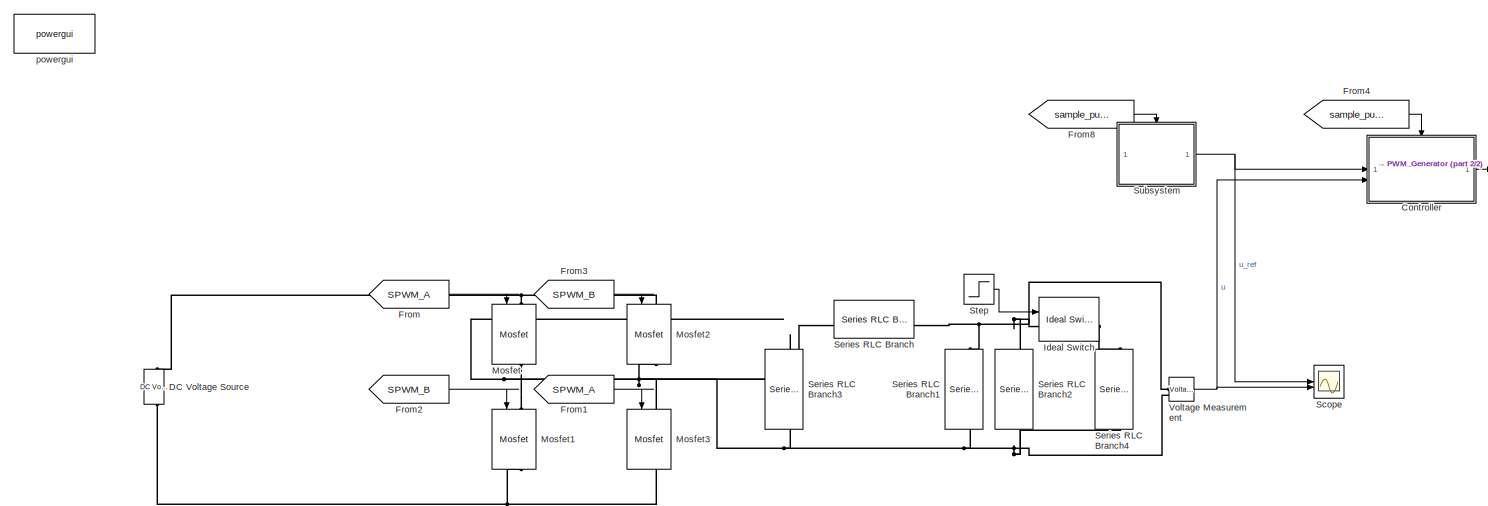
[diagram: root canvas - part 1/2, most of the canvas]
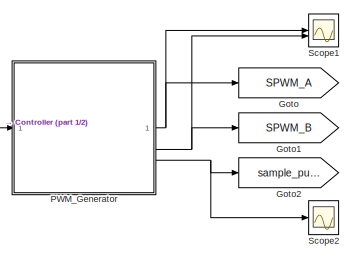
[diagram: root canvas - part 2/2, middle right region]
MODEL slx_9cd9f6e62352
KIND model
CONFIG AbsTol = auto
CONFIG EnableMultiTasking = off
CONFIG FixedStep = 1e-6
CONFIG MaxStep = 1e-8
CONFIG MinStep = auto
CONFIG RelTol = 1e-7
CONFIG SampleTimeConstraint = Unconstrained
CONFIG SolverName = VariableStepAuto
CONFIG StartTime = 0.0
CONFIG StopTime = 0.1
WORKSPACE source: mxarray member
WORKSPACE Kp = 0.2
WORKSPACE Kr = 10
WORKSPACE Ts = 2.5e-05
WORKSPACE wc = 6.28318530718
WORKSPACE wr = 314.159265359
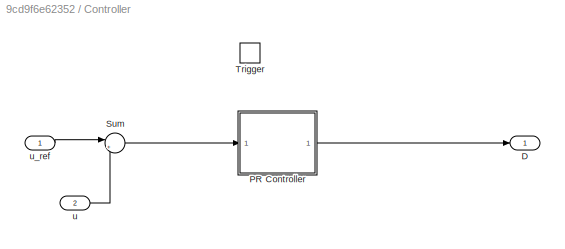
BLOCK [SubSystem] Controller
BLOCK [Outport] Controller/D
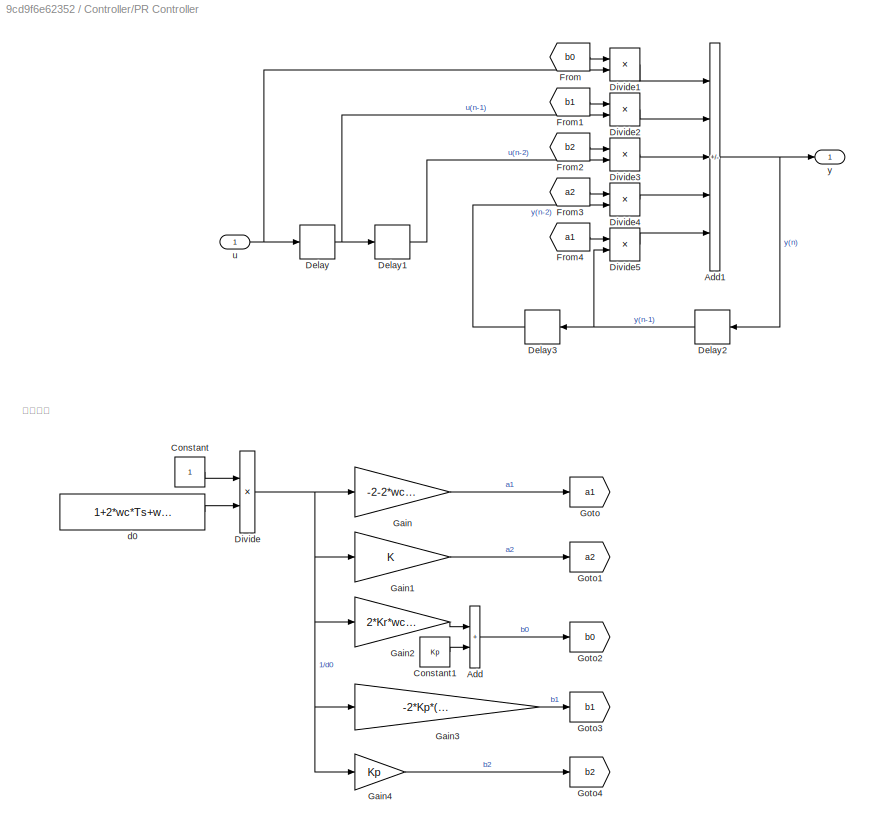
BLOCK [SubSystem] Controller/PR Controller
BLOCK [Sum] Controller/PR Controller/Add
  IconShape = rectangular
BLOCK [Sum] Controller/PR Controller/Add1
  IconShape = rectangular
  Inputs = +++--
BLOCK [Constant] Controller/PR Controller/Constant
BLOCK [Constant] Controller/PR Controller/Constant1
  Value = Kp
BLOCK [Delay] Controller/PR Controller/Delay
  DelayLength = 1
  InitialCondition = 0
  InputPortMap = u0
BLOCK [Delay] Controller/PR Controller/Delay1
  DelayLength = 1
  InitialCondition = 0
  InputPortMap = u0
BLOCK [Delay] Controller/PR Controller/Delay2
  DelayLength = 1
  InitialCondition = 0
  InputPortMap = u0
  NameLocation = top
BLOCK [Delay] Controller/PR Controller/Delay3
  DelayLength = 1
  InitialCondition = 0
  InputPortMap = u0
  NameLocation = top
BLOCK [Product] Controller/PR Controller/Divide
  Inputs = */
BLOCK [Product] Controller/PR Controller/Divide1
  Inputs = **
BLOCK [Product] Controller/PR Controller/Divide2
  Inputs = **
BLOCK [Product] Controller/PR Controller/Divide3
  Inputs = **
BLOCK [Product] Controller/PR Controller/Divide4
  Inputs = **
BLOCK [Product] Controller/PR Controller/Divide5
  Inputs = **
BLOCK [From] Controller/PR Controller/From
  GotoTag = b0
BLOCK [From] Controller/PR Controller/From1
  GotoTag = b1
BLOCK [From] Controller/PR Controller/From2
  GotoTag = b2
BLOCK [From] Controller/PR Controller/From3
  GotoTag = a2
BLOCK [From] Controller/PR Controller/From4
  GotoTag = a1
BLOCK [Gain] Controller/PR Controller/Gain
  Gain = -2-2*wc*Ts
BLOCK [Gain] Controller/PR Controller/Gain1
BLOCK [Gain] Controller/PR Controller/Gain2
  Gain = 2*Kr*wc*Ts
BLOCK [Gain] Controller/PR Controller/Gain3
  Gain = -2*Kp*(1+wc*Ts)-2*Kr*wc*Ts
BLOCK [Gain] Controller/PR Controller/Gain4
  Gain = Kp
BLOCK [Goto] Controller/PR Controller/Goto
  GotoTag = a1
BLOCK [Goto] Controller/PR Controller/Goto1
  GotoTag = a2
BLOCK [Goto] Controller/PR Controller/Goto2
  GotoTag = b0
BLOCK [Goto] Controller/PR Controller/Goto3
  GotoTag = b1
BLOCK [Goto] Controller/PR Controller/Goto4
  GotoTag = b2
BLOCK [Constant] Controller/PR Controller/d0
  Value = 1+2*wc*Ts+wr*wr*Ts*Ts
BLOCK [Inport] Controller/PR Controller/u
BLOCK [Outport] Controller/PR Controller/y
BLOCK [Sum] Controller/Sum
  Inputs = |+-
BLOCK [TriggerPort] Controller/Trigger
  StatesWhenEnabling = held
  VariantControl = (inherit)
BLOCK [Inport] Controller/u
  Port = 2
BLOCK [Inport] Controller/u_ref
BLOCK [Reference] DC Voltage Source  REF=spsDCVoltageSourceLib/DC Voltage Source
  LibrarySourceBlock = sps_lib/Sources/DC Voltage Source
  SourceBlock = spsDCVoltageSourceLib/DC Voltage Source
  SourceType = DC Voltage Source
BLOCK [From] From
  GotoTag = SPWM_A
BLOCK [From] From1
  GotoTag = SPWM_A
BLOCK [From] From2
  GotoTag = SPWM_B
BLOCK [From] From3
  GotoTag = SPWM_B
BLOCK [From] From4
  GotoTag = sample_pulse
BLOCK [From] From8
  GotoTag = sample_pulse
BLOCK [Goto] Goto
  GotoTag = SPWM_A
BLOCK [Goto] Goto1
  GotoTag = SPWM_B
BLOCK [Goto] Goto2
  GotoTag = sample_pulse
BLOCK [Reference] Ideal Switch  REF=spsIdealSwitchLib/Ideal Switch
  LibrarySourceBlock = sps_lib/Power Electronics/Ideal Switch
  SourceBlock = spsIdealSwitchLib/Ideal Switch
  SourceType = Ideal Switch
BLOCK [Reference] Mosfet  REF=spsMosfetLib/Mosfet
  LibrarySourceBlock = sps_lib/Power Electronics/Mosfet
  NameLocation = left
  SourceBlock = spsMosfetLib/Mosfet
  SourceType = Mosfet
BLOCK [Reference] Mosfet1  REF=spsMosfetLib/Mosfet
  LibrarySourceBlock = sps_lib/Power Electronics/Mosfet
  NameLocation = left
  SourceBlock = spsMosfetLib/Mosfet
  SourceType = Mosfet
BLOCK [Reference] Mosfet2  REF=spsMosfetLib/Mosfet
  LibrarySourceBlock = sps_lib/Power Electronics/Mosfet
  NameLocation = left
  SourceBlock = spsMosfetLib/Mosfet
  SourceType = Mosfet
BLOCK [Reference] Mosfet3  REF=spsMosfetLib/Mosfet
  LibrarySourceBlock = sps_lib/Power Electronics/Mosfet
  NameLocation = left
  SourceBlock = spsMosfetLib/Mosfet
  SourceType = Mosfet
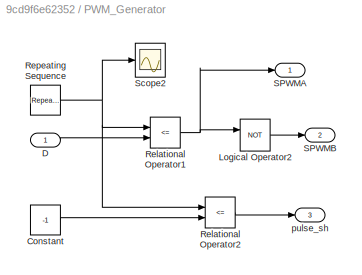
BLOCK [SubSystem] PWM_Generator
BLOCK [Constant] PWM_Generator/Constant
  Value = -1
BLOCK [Inport] PWM_Generator/D
BLOCK [Logic] PWM_Generator/Logical Operator2
  AllPortsSameDT = off
  Operator = NOT
  OutDataTypeStr = boolean
BLOCK [RelationalOperator] PWM_Generator/Relational Operator1
  InputSameDT = off
  Operator = <=
  OutDataTypeStr = boolean
  RndMeth = Simplest
BLOCK [RelationalOperator] PWM_Generator/Relational Operator2
  InputSameDT = off
  Operator = <=
  OutDataTypeStr = boolean
  RndMeth = Simplest
BLOCK [Reference] PWM_Generator/Repeating Sequence  REF=simulink/Sources/Repeating
Sequence
  SourceBlock = simulink/Sources/Repeating\nSequence
  SourceType = Repeating table
BLOCK [Outport] PWM_Generator/SPWMA
BLOCK [Outport] PWM_Generator/SPWMB
  Port = 2
BLOCK [Scope] PWM_Generator/Scope2
  Floating = off
  NumInputPorts = 1
  ScopeSpecificationString = Simulink.scopes.TimeScopeBlockCfg('CurrentConfiguration', extmgr.ConfigurationSet(extmgr.Configuration('Core','General UI',true,'FigureColor',[1 1 1]),extmgr.Configuration('Core','Source UI',true),extmgr.Configuration('Sources','WiredSimulink',true,'DataLoggingVariableName','ScopeData2'),extmgr.Configuration('Visuals','Time Domain',true,'SerializedDisplays',{struct('MinYLimReal','-1.01132','MaxYLi...<+2689ch>
BLOCK [Outport] PWM_Generator/pulse_sh
  Port = 3
BLOCK [Scope] Scope
  Floating = off
  NumInputPorts = 2
  ScopeSpecificationString = Simulink.scopes.TimeScopeBlockCfg('CurrentConfiguration', extmgr.ConfigurationSet(extmgr.Configuration('Core','General UI',true,'FigureColor',[1 1 1]),extmgr.Configuration('Core','Source UI',true),extmgr.Configuration('Sources','WiredSimulink',true),extmgr.Configuration('Visuals','Time Domain',true,'SerializedDisplays',{struct('MinYLimReal','-15.20725','MaxYLimReal','15.02303','YLabelReal','','Min...<+2345ch>
BLOCK [Scope] Scope1
  Floating = off
  NumInputPorts = 2
  ScopeSpecificationString = Simulink.scopes.TimeScopeBlockCfg('CurrentConfiguration', extmgr.ConfigurationSet(extmgr.Configuration('Core','General UI',true,'FigureColor',[1 1 1]),extmgr.Configuration('Core','Source UI',true),extmgr.Configuration('Sources','WiredSimulink',true,'DataLoggingVariableName','ScopeData1'),extmgr.Configuration('Visuals','Time Domain',true,'SerializedDisplays',{struct('MinYLimReal','-0.01597','MaxYLi...<+2736ch>
BLOCK [Scope] Scope2
  Floating = off
  NumInputPorts = 1
  ScopeSpecificationString = Simulink.scopes.TimeScopeBlockCfg('CurrentConfiguration', extmgr.ConfigurationSet(extmgr.Configuration('Core','General UI',true,'FigureColor',[1 1 1]),extmgr.Configuration('Core','Source UI',true),extmgr.Configuration('Sources','WiredSimulink',true,'DataLoggingVariableName','ScopeData1'),extmgr.Configuration('Visuals','Time Domain',true,'SerializedDisplays',{struct('MinYLimReal','-0.03235','MaxYLi...<+2682ch>
BLOCK [Reference] Series RLC Branch  REF=spsSeriesRLCBranchLib/Series RLC Branch
  LibrarySourceBlock = sps_lib/Passives/Series RLC Branch
  SourceBlock = spsSeriesRLCBranchLib/Series RLC Branch
  SourceType = Series RLC Branch
BLOCK [Reference] Series RLC Branch1  REF=spsSeriesRLCBranchLib/Series RLC Branch
  LibrarySourceBlock = sps_lib/Passives/Series RLC Branch
  NameLocation = left
  SourceBlock = spsSeriesRLCBranchLib/Series RLC Branch
  SourceType = Series RLC Branch
BLOCK [Reference] Series RLC Branch2  REF=spsSeriesRLCBranchLib/Series RLC Branch
  LibrarySourceBlock = sps_lib/Passives/Series RLC Branch
  NameLocation = left
  SourceBlock = spsSeriesRLCBranchLib/Series RLC Branch
  SourceType = Series RLC Branch
BLOCK [Reference] Series RLC Branch3  REF=spsSeriesRLCBranchLib/Series RLC Branch
  LibrarySourceBlock = sps_lib/Passives/Series RLC Branch
  NameLocation = left
  SourceBlock = spsSeriesRLCBranchLib/Series RLC Branch
  SourceType = Series RLC Branch
BLOCK [Reference] Series RLC Branch4  REF=spsSeriesRLCBranchLib/Series RLC Branch
  LibrarySourceBlock = sps_lib/Passives/Series RLC Branch
  NameLocation = left
  SourceBlock = spsSeriesRLCBranchLib/Series RLC Branch
  SourceType = Series RLC Branch
BLOCK [Step] Step
  SampleTime = 0
  Time = 0.05
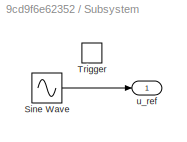
BLOCK [SubSystem] Subsystem
BLOCK [Sin] Subsystem/Sine Wave
  Amplitude = 12
  Frequency = 50*2*pi
BLOCK [TriggerPort] Subsystem/Trigger
  StatesWhenEnabling = held
  VariantControl = (inherit)
BLOCK [Outport] Subsystem/u_ref
BLOCK [Reference] Voltage Measurement  REF=spsVoltageMeasurementLib/Voltage Measurement
  LibrarySourceBlock = sps_lib/Sensors and Measurements/Voltage Measurement
  SourceBlock = spsVoltageMeasurementLib/Voltage Measurement
  SourceType = Voltage Measurement
  UserDataPersistent = on
BLOCK [Reference] powergui  REF=sps_lib/powergui
  Priority = 1
  SourceBlock = sps_lib/powergui
  SourceType = PSB option menu block
ANNOTATION Controller/PR Controller: 系数计算
NET Controller/PR Controller/Add1:1 -> Controller/PR Controller/Delay2:1, Controller/PR Controller/y:1
LINE Controller/PR Controller/Add:1 -> Controller/PR Controller/Goto2:1
LINE Controller/PR Controller/Constant1:1 -> Controller/PR Controller/Add:2
LINE Controller/PR Controller/Constant:1 -> Controller/PR Controller/Divide:1
LINE Controller/PR Controller/Delay1:1 -> Controller/PR Controller/Divide3:2
NET Controller/PR Controller/Delay2:1 -> Controller/PR Controller/Delay3:1, Controller/PR Controller/Divide5:2
LINE Controller/PR Controller/Delay3:1 -> Controller/PR Controller/Divide4:2
NET Controller/PR Controller/Delay:1 -> Controller/PR Controller/Delay1:1, Controller/PR Controller/Divide2:2
LINE Controller/PR Controller/Divide1:1 -> Controller/PR Controller/Add1:1
LINE Controller/PR Controller/Divide2:1 -> Controller/PR Controller/Add1:2
LINE Controller/PR Controller/Divide3:1 -> Controller/PR Controller/Add1:3
LINE Controller/PR Controller/Divide4:1 -> Controller/PR Controller/Add1:4
LINE Controller/PR Controller/Divide5:1 -> Controller/PR Controller/Add1:5
NET Controller/PR Controller/Divide:1 -> Controller/PR Controller/Gain1:1, Controller/PR Controller/Gain2:1, Controller/PR Controller/Gain3:1, Controller/PR Controller/Gain4:1, Controller/PR Controller/Gain:1
LINE Controller/PR Controller/From1:1 -> Controller/PR Controller/Divide2:1
LINE Controller/PR Controller/From2:1 -> Controller/PR Controller/Divide3:1
LINE Controller/PR Controller/From3:1 -> Controller/PR Controller/Divide4:1
LINE Controller/PR Controller/From4:1 -> Controller/PR Controller/Divide5:1
LINE Controller/PR Controller/From:1 -> Controller/PR Controller/Divide1:1
LINE Controller/PR Controller/Gain1:1 -> Controller/PR Controller/Goto1:1
LINE Controller/PR Controller/Gain2:1 -> Controller/PR Controller/Add:1
LINE Controller/PR Controller/Gain3:1 -> Controller/PR Controller/Goto3:1
LINE Controller/PR Controller/Gain4:1 -> Controller/PR Controller/Goto4:1
LINE Controller/PR Controller/Gain:1 -> Controller/PR Controller/Goto:1
LINE Controller/PR Controller/d0:1 -> Controller/PR Controller/Divide:2
NET Controller/PR Controller/u:1 -> Controller/PR Controller/Delay:1, Controller/PR Controller/Divide1:2
LINE Controller/PR Controller:1 -> Controller/D:1
LINE Controller/Sum:1 -> Controller/PR Controller:1
LINE Controller/u:1 -> Controller/Sum:2
LINE Controller/u_ref:1 -> Controller/Sum:1
LINE Controller:1 -> PWM_Generator:1
LINE From1:1 -> Mosfet3:1
LINE From2:1 -> Mosfet1:1
LINE From3:1 -> Mosfet2:1
LINE From4:1 -> Controller:trigger
LINE From8:1 -> Subsystem:trigger
LINE From:1 -> Mosfet:1
LINE PWM_Generator/Constant:1 -> PWM_Generator/Relational Operator2:2
LINE PWM_Generator/D:1 -> PWM_Generator/Relational Operator1:2
LINE PWM_Generator/Logical Operator2:1 -> PWM_Generator/SPWMB:1
NET PWM_Generator/Relational Operator1:1 -> PWM_Generator/Logical Operator2:1, PWM_Generator/SPWMA:1
LINE PWM_Generator/Relational Operator2:1 -> PWM_Generator/pulse_sh:1
NET PWM_Generator/Repeating Sequence:1 -> PWM_Generator/Relational Operator1:1, PWM_Generator/Relational Operator2:1, PWM_Generator/Scope2:1
NET PWM_Generator:1 -> Goto:1, Scope1:1
NET PWM_Generator:2 -> Goto1:1, Scope1:2
NET PWM_Generator:3 -> Goto2:1, Scope2:1
LINE Step:1 -> Ideal Switch:1
LINE Subsystem/Sine Wave:1 -> Subsystem/u_ref:1
NET Subsystem:1 -> Controller:1, Scope:1
NET Voltage Measurement:1 -> Controller:2, Scope:2
PNET net1: DC Voltage Source:LConn1 -- Mosfet1:RConn1 -- Mosfet3:RConn1
PNET net2: DC Voltage Source:RConn1 -- Mosfet2:LConn1 -- Mosfet:LConn1
PNET net3: Ideal Switch:LConn1 -- Series RLC Branch1:LConn1 -- Series RLC Branch2:LConn1 -- Series RLC Branch:RConn1 -- Voltage Measurement:LConn1
PLINE Ideal Switch:RConn1 -- Series RLC Branch4:LConn1
PNET net4: Mosfet1:LConn1 -- Mosfet:RConn1 -- Series RLC Branch3:LConn1 -- Series RLC Branch:LConn1
PNET net5: Mosfet2:RConn1 -- Mosfet3:LConn1 -- Series RLC Branch1:RConn1 -- Series RLC Branch2:RConn1 -- Series RLC Branch3:RConn1 -- Series RLC Branch4:RConn1 -- Voltage Measurement:LConn2
note: NET lines group one-source signal fan-out (src -> all destinations, sorted); 1:1 wires keep LINE; PNET lines group multi-terminal physical nets as a canonical sorted terminal list (undirected conserving connections); 2-terminal nets keep the pairwise PLINE form
